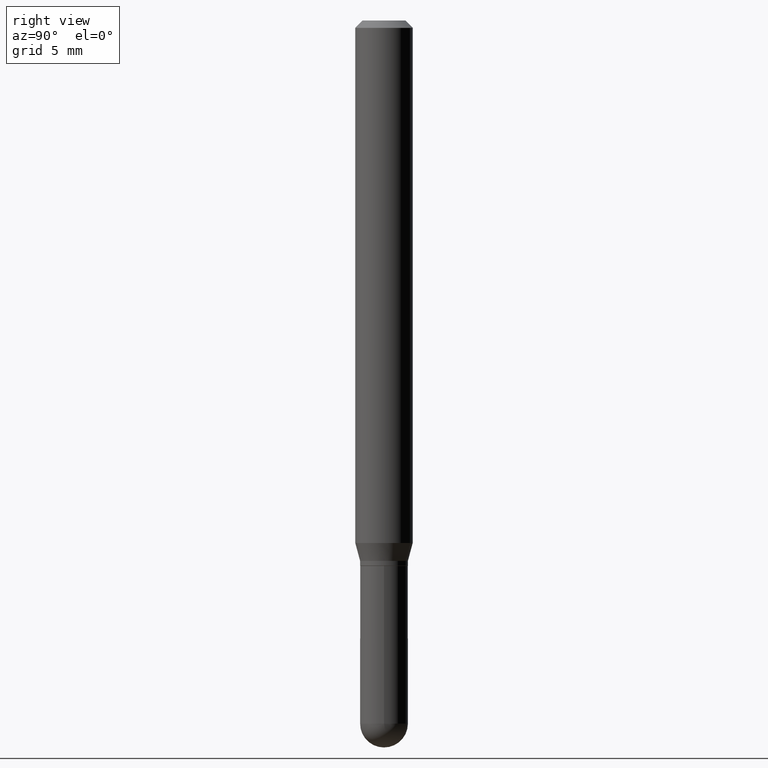
[diagram: clean part render]
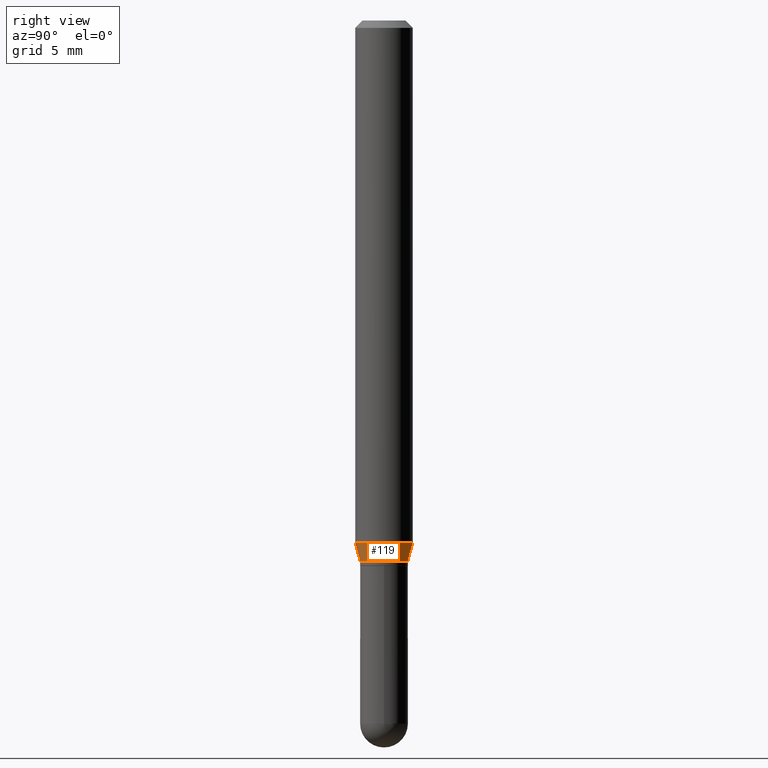
[diagram: same view with one face highlighted and labeled with its STEP entity id]
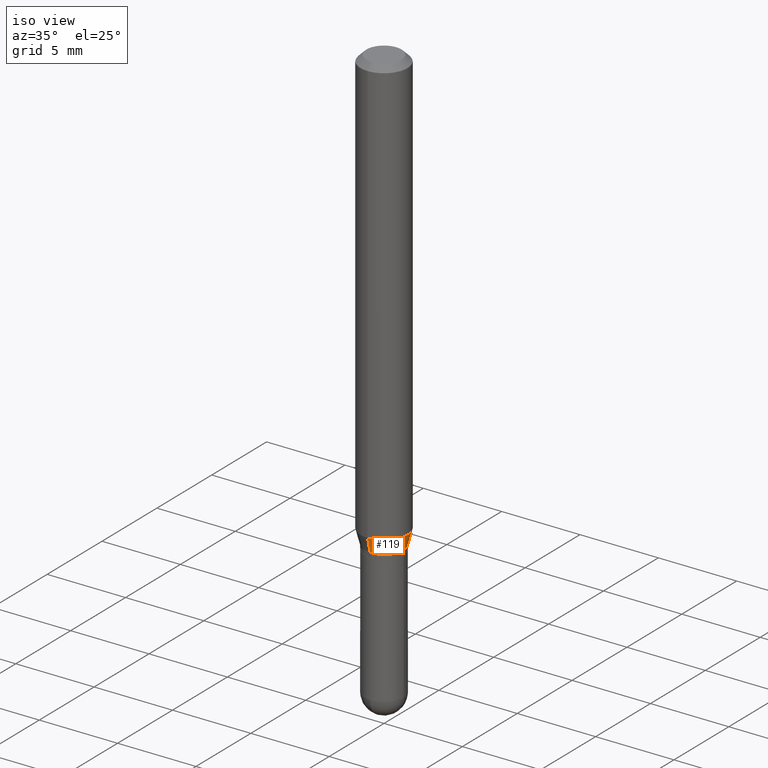
[diagram: same view with one face highlighted and labeled with its STEP entity id]
A machine part, right view. The second image highlights one B-rep face of the part: STEP entity #119.
A second angle (iso view) of the same face is appended — the face is thin or edge-on in the first view.
In plain terms, the highlighted conical surface has half-angle 15 deg.
Its self-contained STEP definition (entity closure, byte-faithful):
#5 = CONICAL_SURFACE ( 'NONE', #440, 0.04920000000000020191, 0.2617993877991497964 ) ;
#10 = CARTESIAN_POINT ( 'NONE',  ( 2.719749190764762494E-29, -3.882671138195762531E-15, -1.112099999999999866 ) ) ;
#14 = CIRCLE ( 'NONE', #370, 0.05904999999999999832 ) ;
#24 = CARTESIAN_POINT ( 'NONE',  ( 2.719749190764762494E-29, -3.882671138195762531E-15, -1.112099999999999866 ) ) ;
#26 = AXIS2_PLACEMENT_3D ( 'NONE', #24, #241, #122 ) ;
#27 = EDGE_CURVE ( 'NONE', #35, #374, #14, .T. ) ;
#35 = VERTEX_POINT ( 'NONE', #190 ) ;
#44 = DIRECTION ( 'NONE',  ( -6.982962677686265922E-15, -1.000000000000000000, 4.626330217890369336E-15 ) ) ;
#52 = CIRCLE ( 'NONE', #26, 0.04920000000000020191 ) ;
#64 = LINE ( 'NONE', #338, #362 ) ;
#65 = LINE ( 'NONE', #177, #393 ) ;
#88 = CARTESIAN_POINT ( 'NONE',  ( -3.435617637421385410E-16, -0.04920000000000408769, -1.112099999999999644 ) ) ;
#92 = EDGE_CURVE ( 'NONE', #215, #501, #52, .T. ) ;
#119 = ADVANCED_FACE ( 'NONE', ( #127 ), #5, .T. ) ;
#122 = DIRECTION ( 'NONE',  ( -6.982962677686265922E-15, -1.000000000000000000, 2.776268286244158643E-15 ) ) ;
#127 = FACE_OUTER_BOUND ( 'NONE', #305, .T. ) ;
#145 = ORIENTED_EDGE ( 'NONE', *, *, #342, .T. ) ;
#165 = DIRECTION ( 'NONE',  ( -6.982962677686265922E-15, -1.000000000000000000, 2.776268286244158643E-15 ) ) ;
#177 = CARTESIAN_POINT ( 'NONE',  ( -3.435617637421385410E-16, -0.04920000000000408769, -1.112099999999999644 ) ) ;
#188 = ORIENTED_EDGE ( 'NONE', *, *, #92, .T. ) ;
#190 = CARTESIAN_POINT ( 'NONE',  ( -4.123439461173478031E-16, -0.05905000000000376614, -1.075339299545447158 ) ) ;
#195 = DIRECTION ( 'NONE',  ( -2.445597689744413996E-29, 3.491296770250663651E-15, 1.000000000000000000 ) ) ;
#215 = VERTEX_POINT ( 'NONE', #88 ) ;
#241 = DIRECTION ( 'NONE',  ( -2.445597689744413996E-29, 3.491296770250663651E-15, 1.000000000000000000 ) ) ;
#248 = ORIENTED_EDGE ( 'NONE', *, *, #27, .F. ) ;
#251 = CARTESIAN_POINT ( 'NONE',  ( 3.845812557301816843E-16, 0.04919999999999632306, -1.112100000000000088 ) ) ;
#273 = CARTESIAN_POINT ( 'NONE',  ( 2.629847306659722038E-29, -3.754328623426630986E-15, -1.075339299545447158 ) ) ;
#305 = EDGE_LOOP ( 'NONE', ( #188, #145, #248, #329 ) ) ;
#329 = ORIENTED_EDGE ( 'NONE', *, *, #511, .F. ) ;
#335 = DIRECTION ( 'NONE',  ( -1.807323732225326984E-15, -0.2588190451025177419, 0.9659258262890690894 ) ) ;
#338 = CARTESIAN_POINT ( 'NONE',  ( 3.495870259939978432E-16, 0.04919999999999632306, -1.112100000000000088 ) ) ;
#342 = EDGE_CURVE ( 'NONE', #501, #374, #64, .T. ) ;
#362 = VECTOR ( 'NONE', #452, 39.37007874015748143 ) ;
#370 = AXIS2_PLACEMENT_3D ( 'NONE', #273, #391, #44 ) ;
#374 = VERTEX_POINT ( 'NONE', #413 ) ;
#391 = DIRECTION ( 'NONE',  ( -2.445597689744413996E-29, 3.491296770250663651E-15, 1.000000000000000000 ) ) ;
#393 = VECTOR ( 'NONE', #335, 39.37007874015748143 ) ;
#413 = CARTESIAN_POINT ( 'NONE',  ( 4.195754854663652789E-16, 0.05904999999999623744, -1.075339299545447380 ) ) ;
#440 = AXIS2_PLACEMENT_3D ( 'NONE', #10, #195, #165 ) ;
#452 = DIRECTION ( 'NONE',  ( 1.839019923739597160E-15, 0.2588190451025245142, 0.9659258262890673130 ) ) ;
#501 = VERTEX_POINT ( 'NONE', #251 ) ;
#511 = EDGE_CURVE ( 'NONE', #215, #35, #65, .T. ) ;